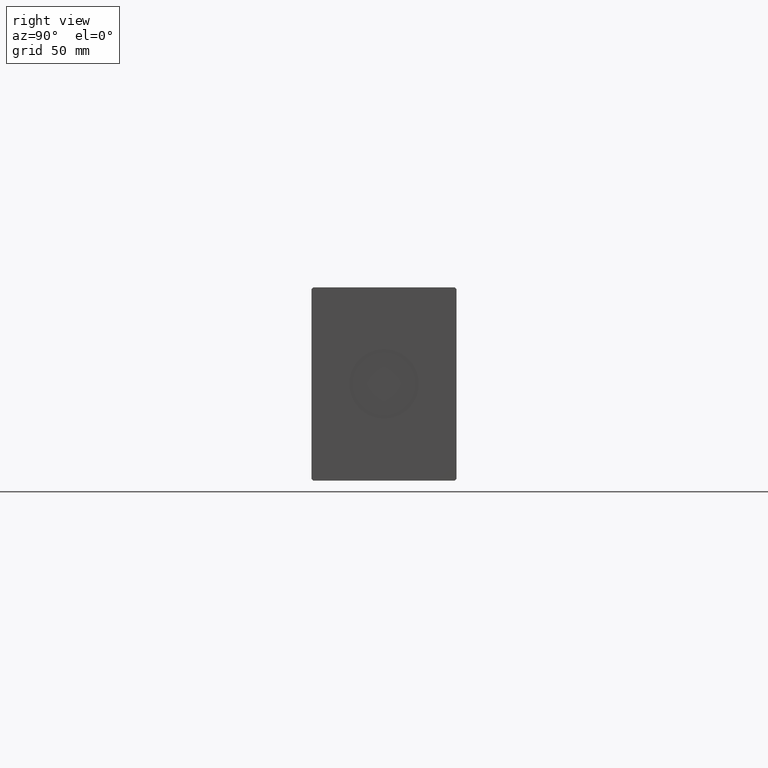
[diagram: clean part render]
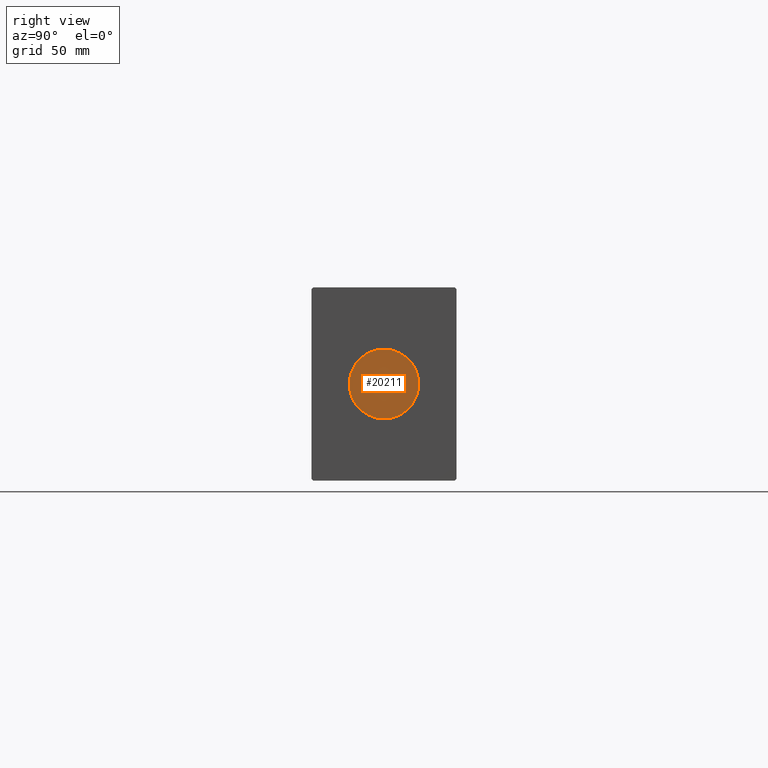
[diagram: same view with one face highlighted and labeled with its STEP entity id]
A machine part, right view. The second image highlights one B-rep face of the part: STEP entity #20211.
In plain terms, the highlighted planar face has unit normal (1, 0, 0).
Its self-contained STEP definition (entity closure, byte-faithful):
#2517 = PLANE ( 'NONE',  #21068 ) ;
#2777 = CIRCLE ( 'NONE', #4151, 18.00000000000000000 ) ;
#4151 = AXIS2_PLACEMENT_3D ( 'NONE', #6937, #25495, #22338 ) ;
#6937 = CARTESIAN_POINT ( 'NONE',  ( 356.8000000000000114, 0.000000000000000000, 0.000000000000000000 ) ) ;
#11904 = ORIENTED_EDGE ( 'NONE', *, *, #22173, .T. ) ;
#12239 = CARTESIAN_POINT ( 'NONE',  ( 356.8000000000000114, 0.000000000000000000, 0.000000000000000000 ) ) ;
#15617 = DIRECTION ( 'NONE',  ( 0.000000000000000000, 0.000000000000000000, -1.000000000000000000 ) ) ;
#17430 = ORIENTED_EDGE ( 'NONE', *, *, #24164, .T. ) ;
#18305 = CARTESIAN_POINT ( 'NONE',  ( 356.8000000000000114, 2.204364238465235428E-15, 18.00000000000000000 ) ) ;
#18390 = EDGE_LOOP ( 'NONE', ( #11904, #17430 ) ) ;
#20211 = ADVANCED_FACE ( 'NONE', ( #31419 ), #2517, .T. ) ;
#20665 = DIRECTION ( 'NONE',  ( 0.000000000000000000, 0.000000000000000000, -1.000000000000000000 ) ) ;
#21068 = AXIS2_PLACEMENT_3D ( 'NONE', #12239, #28266, #15617 ) ;
#22173 = EDGE_CURVE ( 'NONE', #36382, #41056, #40747, .T. ) ;
#22338 = DIRECTION ( 'NONE',  ( 0.000000000000000000, 0.000000000000000000, -1.000000000000000000 ) ) ;
#24164 = EDGE_CURVE ( 'NONE', #41056, #36382, #2777, .T. ) ;
#25495 = DIRECTION ( 'NONE',  ( 1.000000000000000000, 0.000000000000000000, 0.000000000000000000 ) ) ;
#26602 = AXIS2_PLACEMENT_3D ( 'NONE', #36707, #32903, #20665 ) ;
#28266 = DIRECTION ( 'NONE',  ( 1.000000000000000000, 0.000000000000000000, 0.000000000000000000 ) ) ;
#31419 = FACE_OUTER_BOUND ( 'NONE', #18390, .T. ) ;
#32903 = DIRECTION ( 'NONE',  ( 1.000000000000000000, 0.000000000000000000, 0.000000000000000000 ) ) ;
#36382 = VERTEX_POINT ( 'NONE', #36735 ) ;
#36707 = CARTESIAN_POINT ( 'NONE',  ( 356.8000000000000114, 0.000000000000000000, 0.000000000000000000 ) ) ;
#36735 = CARTESIAN_POINT ( 'NONE',  ( 356.8000000000000114, 0.000000000000000000, -18.00000000000000000 ) ) ;
#40747 = CIRCLE ( 'NONE', #26602, 18.00000000000000000 ) ;
#41056 = VERTEX_POINT ( 'NONE', #18305 ) ;